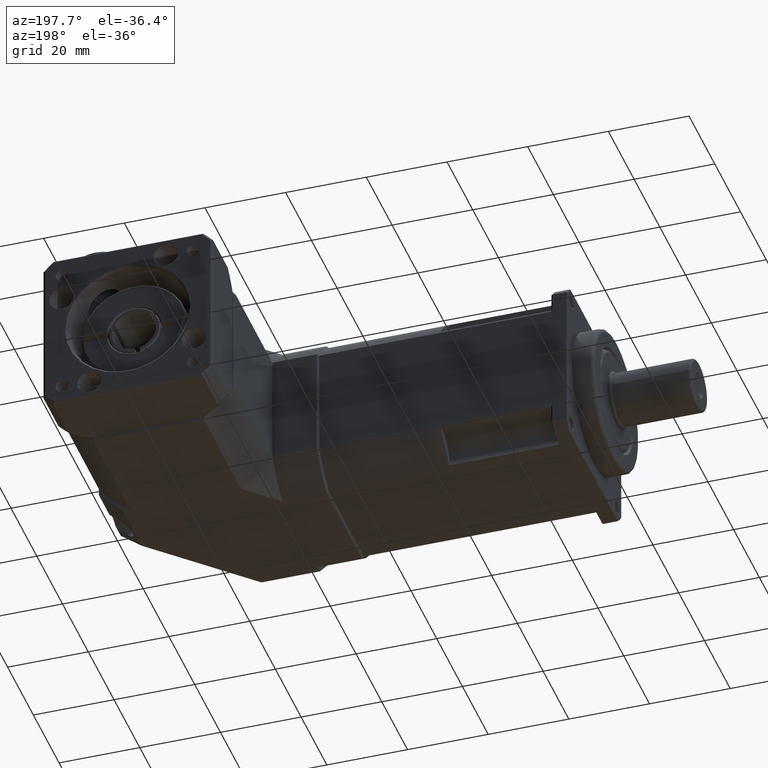
[diagram: clean part render]
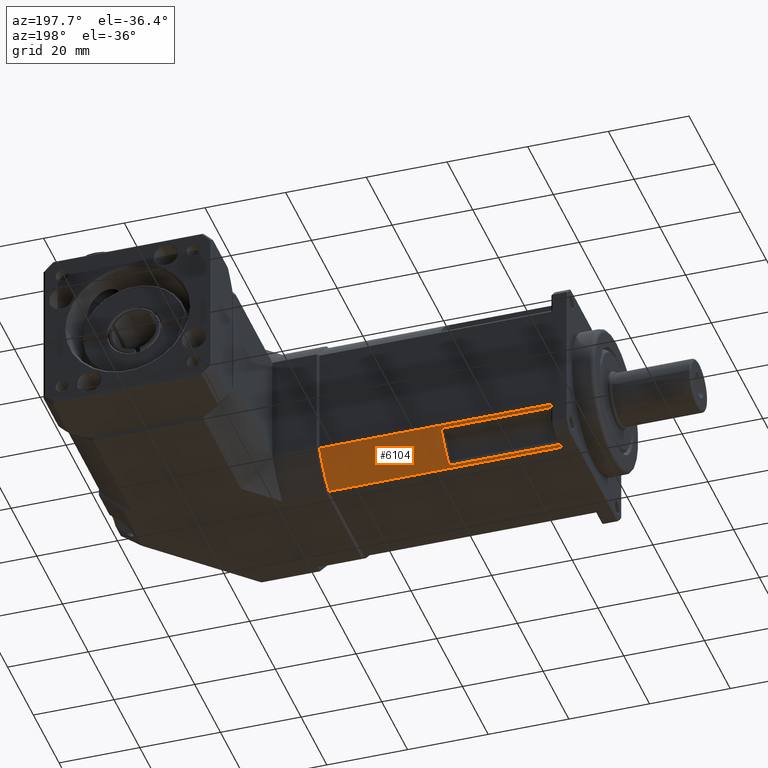
[diagram: same view with one face highlighted and labeled with its STEP entity id]
A machine part, auxiliary view. The second image highlights one B-rep face of the part: STEP entity #6104.
In plain terms, the highlighted cylindrical surface (partial cylindrical patch) has radius 25 mm, axis along (-1, -0, 0).
Its self-contained STEP definition (entity closure, byte-faithful):
#22=ELLIPSE('',#6672,35.3553390593278,25.);
#23=ELLIPSE('',#6677,35.3553390593274,25.);
#366=LINE('',#10223,#677);
#367=LINE('',#10224,#678);
#371=LINE('',#10231,#682);
#372=LINE('',#10232,#683);
#677=VECTOR('',#8178,27.5);
#678=VECTOR('',#8179,27.5);
#682=VECTOR('',#8189,57.7);
#683=VECTOR('',#8190,57.7);
#1140=CYLINDRICAL_SURFACE('',#6752,25.);
#1445=FACE_OUTER_BOUND('',#1968,.T.);
#1968=EDGE_LOOP('',(#4799,#4800,#4801,#4802,#4803,#4804,#4805,#4806,#4807,
#4808));
#2314=CIRCLE('',#6592,25.);
#2336=CIRCLE('',#6653,25.);
#2348=CIRCLE('',#6679,25.);
#2350=CIRCLE('',#6681,25.);
#2745=VERTEX_POINT('',#9755);
#2754=VERTEX_POINT('',#9790);
#2782=VERTEX_POINT('',#9951);
#2783=VERTEX_POINT('',#9952);
#2794=VERTEX_POINT('',#9983);
#2795=VERTEX_POINT('',#9985);
#2799=VERTEX_POINT('',#10003);
#2800=VERTEX_POINT('',#10005);
#2801=VERTEX_POINT('',#10009);
#2802=VERTEX_POINT('',#10011);
#3387=EDGE_CURVE('',#2754,#2745,#2314,.T.);
#3444=EDGE_CURVE('',#2783,#2782,#2336,.T.);
#3455=EDGE_CURVE('',#2794,#2795,#22,.F.);
#3462=EDGE_CURVE('',#2799,#2800,#23,.F.);
#3464=EDGE_CURVE('',#2801,#2800,#2348,.T.);
#3466=EDGE_CURVE('',#2794,#2802,#2350,.T.);
#3549=EDGE_CURVE('',#2783,#2801,#366,.T.);
#3550=EDGE_CURVE('',#2802,#2782,#367,.T.);
#3554=EDGE_CURVE('',#2745,#2799,#371,.T.);
#3555=EDGE_CURVE('',#2795,#2754,#372,.T.);
#4799=ORIENTED_EDGE('',*,*,#3549,.T.);
#4800=ORIENTED_EDGE('',*,*,#3464,.T.);
#4801=ORIENTED_EDGE('',*,*,#3462,.F.);
#4802=ORIENTED_EDGE('',*,*,#3554,.F.);
#4803=ORIENTED_EDGE('',*,*,#3387,.F.);
#4804=ORIENTED_EDGE('',*,*,#3555,.F.);
#4805=ORIENTED_EDGE('',*,*,#3455,.F.);
#4806=ORIENTED_EDGE('',*,*,#3466,.T.);
#4807=ORIENTED_EDGE('',*,*,#3550,.T.);
#4808=ORIENTED_EDGE('',*,*,#3444,.F.);
#6104=ADVANCED_FACE('',(#1445),#1140,.T.);
#6592=AXIS2_PLACEMENT_3D('',#9801,#7796,#7797);
#6653=AXIS2_PLACEMENT_3D('',#9954,#7949,#7950);
#6672=AXIS2_PLACEMENT_3D('',#9986,#7988,#7989);
#6677=AXIS2_PLACEMENT_3D('',#10006,#8000,#8001);
#6679=AXIS2_PLACEMENT_3D('',#10010,#8005,#8006);
#6681=AXIS2_PLACEMENT_3D('',#10013,#8009,#8010);
#6752=AXIS2_PLACEMENT_3D('',#10230,#8187,#8188);
#7796=DIRECTION('center_axis',(1.,-1.01733569921149E-16,2.46113125889832E-16));
#7797=DIRECTION('ref_axis',(-2.46113125889832E-16,-1.47683655010147E-15,
1.));
#7949=DIRECTION('center_axis',(-1.,1.01733569921149E-16,-2.46113125889832E-16));
#7950=DIRECTION('ref_axis',(-2.46113125889832E-16,-1.47683655010147E-15,
1.));
#7988=DIRECTION('center_axis',(0.70710678118654,1.60526926297407E-15,-0.707106781186555));
#7989=DIRECTION('ref_axis',(0.707106781186555,-9.76680028365183E-16,0.70710678118654));
#8000=DIRECTION('center_axis',(0.707106781186547,0.707106781186548,1.50143283687802E-15));
#8001=DIRECTION('ref_axis',(-0.707106781186548,0.707106781186547,1.23004906957398E-15));
#8005=DIRECTION('center_axis',(1.,3.3874418421801E-16,-1.95737501449167E-17));
#8006=DIRECTION('ref_axis',(1.95737501449173E-17,-1.71997832643101E-15,
1.));
#8009=DIRECTION('center_axis',(1.,3.3874418421801E-16,-1.95737501449167E-17));
#8010=DIRECTION('ref_axis',(1.95737501449173E-17,-1.71997832643101E-15,
1.));
#8178=DIRECTION('',(-1.,-3.3874418421801E-16,1.95737501449167E-17));
#8179=DIRECTION('',(1.,3.3874418421801E-16,-1.95737501449167E-17));
#8187=DIRECTION('center_axis',(-1.,-3.3874418421801E-16,1.95737501449167E-17));
#8188=DIRECTION('ref_axis',(1.95737501449173E-17,-1.71997832643101E-15,
1.));
#8189=DIRECTION('',(-1.,-3.3874418421801E-16,1.95737501449167E-17));
#8190=DIRECTION('',(1.,3.3874418421801E-16,-1.95737501449167E-17));
#9755=CARTESIAN_POINT('',(27.6917864952593,27.0526784650906,-18.1360200114271));
#9790=CARTESIAN_POINT('',(27.6917864952593,19.6173384313411,-25.5713600451766));
#9801=CARTESIAN_POINT('Origin',(27.6917864952593,6.05267846509057,-4.5713600451766));
#9951=CARTESIAN_POINT('',(-2.30821350474039,20.2518122891674,-25.1476716351083));
#9952=CARTESIAN_POINT('',(-2.3082135047404,26.6289900550223,-18.7704938692533));
#9954=CARTESIAN_POINT('Origin',(-2.30821350474069,6.05267846509057,-4.57136004517661));
#9983=CARTESIAN_POINT('',(-29.8082135047404,19.9220692231592,-25.3713600451766));
#9985=CARTESIAN_POINT('',(-30.0082135047404,19.6173384313411,-25.5713600451766));
#9986=CARTESIAN_POINT('Origin',(-9.00821350473992,6.05267846509055,-4.5713600451766));
#10003=CARTESIAN_POINT('',(-30.0082135047404,27.0526784650906,-18.1360200114271));
#10005=CARTESIAN_POINT('',(-29.8082135047404,26.8526784650906,-18.4407508032452));
#10006=CARTESIAN_POINT('Origin',(-9.00821350474039,6.05267846509055,-4.5713600451766));
#10009=CARTESIAN_POINT('',(-29.8082135047404,26.6289900550223,-18.7704938692533));
#10010=CARTESIAN_POINT('Origin',(-29.8082135047404,6.05267846509055,-4.5713600451766));
#10011=CARTESIAN_POINT('',(-29.8082135047404,20.2518122891674,-25.1476716351083));
#10013=CARTESIAN_POINT('Origin',(-29.8082135047404,6.05267846509055,-4.5713600451766));
#10223=CARTESIAN_POINT('',(-2.3082135047404,26.6289900550223,-18.7704938692533));
#10224=CARTESIAN_POINT('',(-2.30821350474039,20.2518122891674,-25.1476716351083));
#10230=CARTESIAN_POINT('Origin',(-2.30821350474039,6.05267846509056,-4.5713600451766));
#10231=CARTESIAN_POINT('',(-2.3082135047404,27.0526784650906,-18.1360200114271));
#10232=CARTESIAN_POINT('',(-2.30821350474039,19.6173384313411,-25.5713600451766));